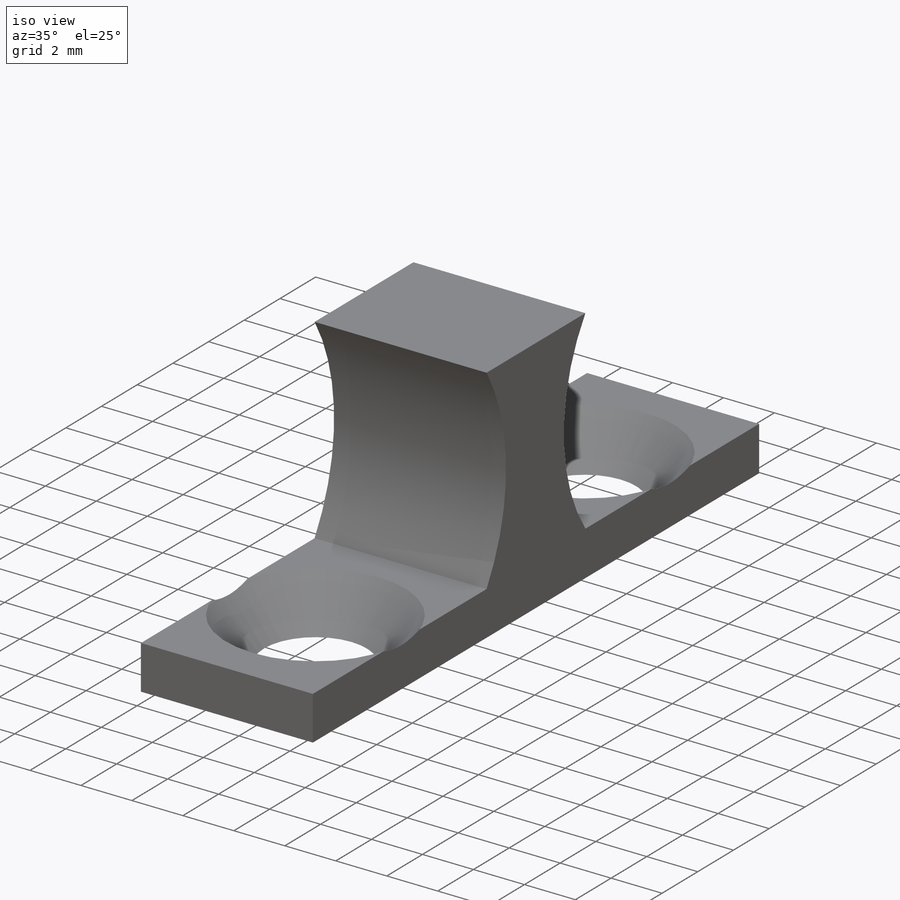
[diagram: iso view]
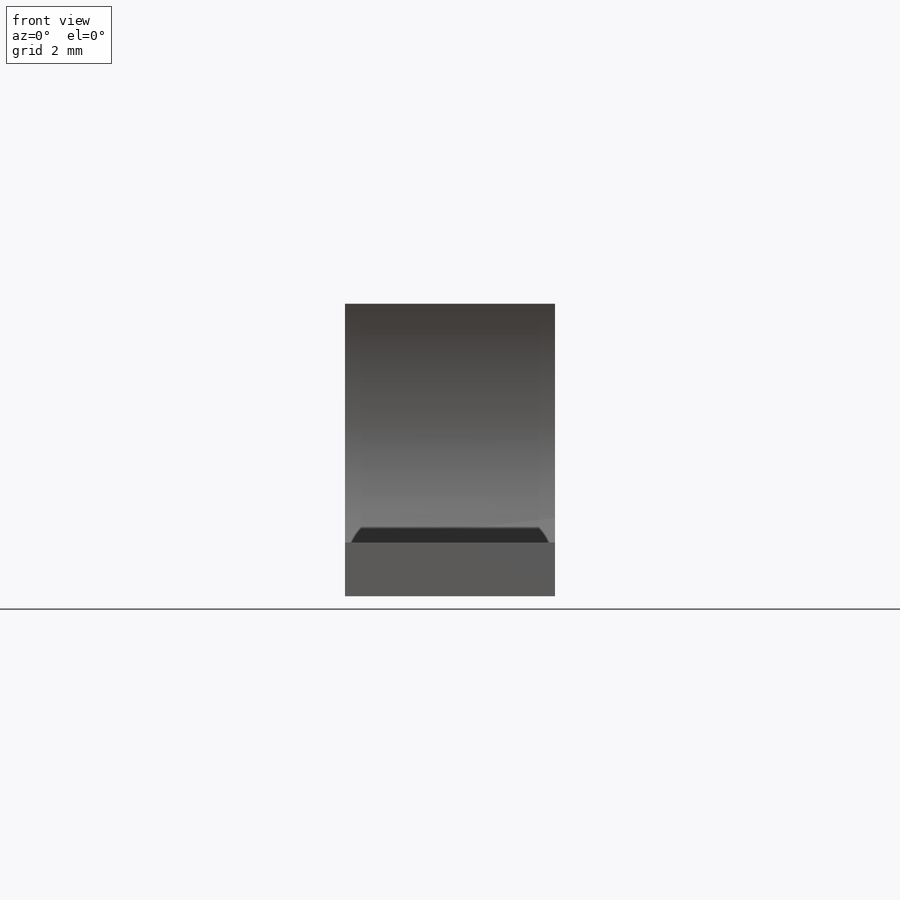
[diagram: front view]
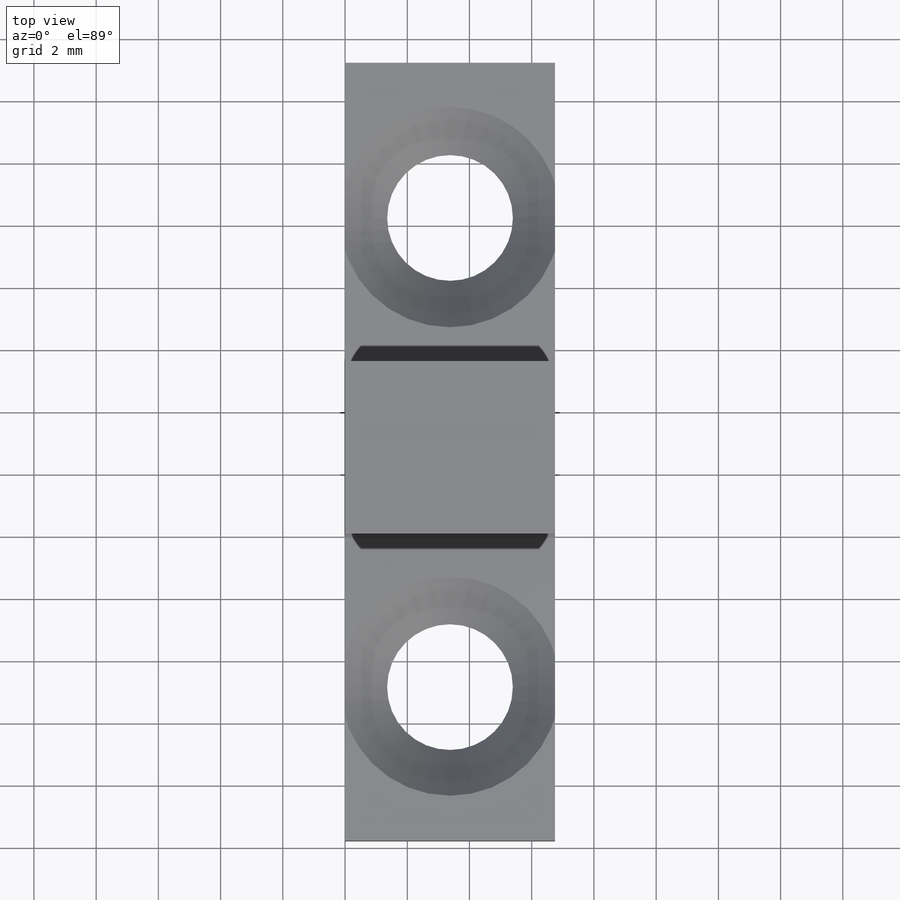
[diagram: top view]
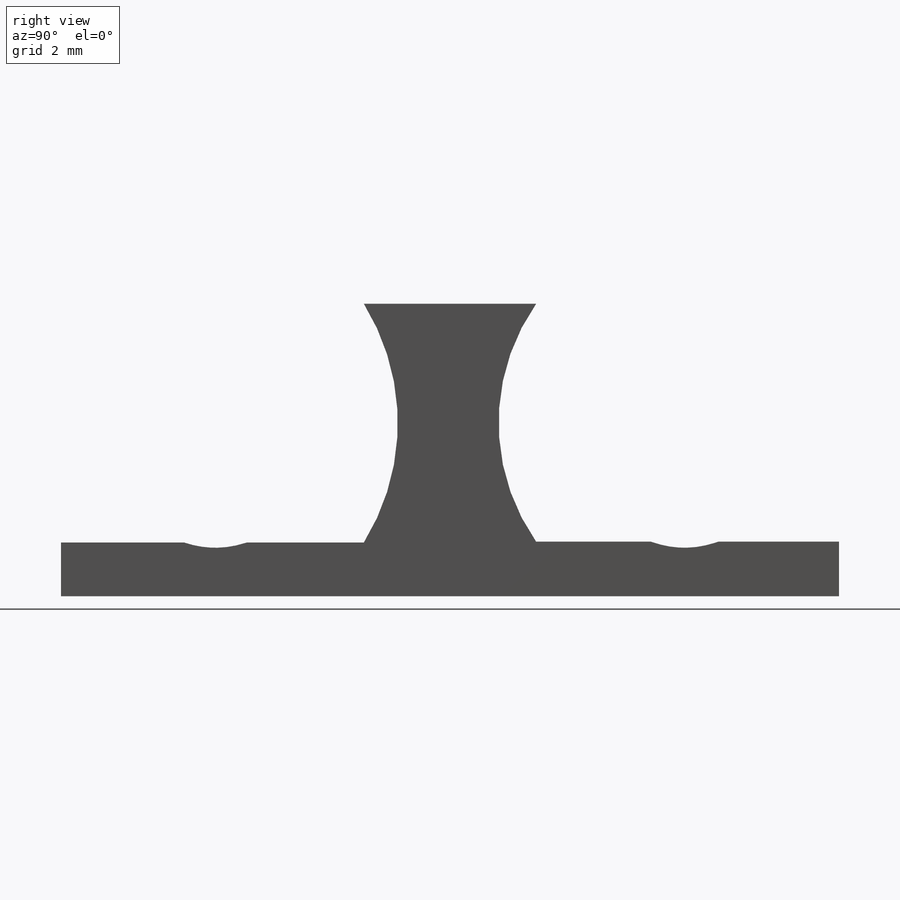
[diagram: right view]
SOLIDWORKS PART (.sldprt)
format: sldprt  version: not decoded by parser v0  size: 196,608 bytes
history: native  units: mm
features: sketch x4, material x1, extrude x1, cut_extrude x1, hole x1 + 1 further entry (+10 scaffold rows collapsed)
feature tree (19):
  scaffold x10  (default folders/planes/origin — collapsed)
  material  "Material <not specified>"
  "Annotations"  RD1=6.746875mm
  sketch  "Sketch2"  dims[c1.D1=1.7272mm c1.D2=1.7526mm c1.D3=~7.540625mm c1.length=~25.003125mm c1.D5=5.5372mm c1.D6=~9.732962mm c1.D4=9.398mm c2.D3=7.6708mm]
  extrude  "Boss-Extrude2"  Depth=6.746875mm
  sketch  "Sketch9"
  cut_extrude  "Cut-Extrude1"  [1 undecoded]
  hole  "CSK for #6 Flat Head Machine Screw1"  Diameter=3.7973mm Depth=1.7526mm
  sketch  "Sketch8"  dims[D1=~15.08125mm D2=~4.960937mm D3=~3.373437mm D4=~3.373437mm]
  sketch  "Sketch7"  dims[hole-wizard template sketch: 55 standard entries collapsed; hole parameters kept: c17.Thru Hole Depth=1.7526mm c17.Near C'Sink Dia.=7.0866mm c17.D4=~3.666174mm c17.Near C'Sink Angle=82.0deg]
decode coverage: 5 of 7 modeling features carry decoded parameters; 1 rows unclassified (native names shown)
note: ~ marks probable driven/reference dimensions
note: 1 parameter value undecoded
note: suppression state not decoded; provenance and decode notes live in map.json
